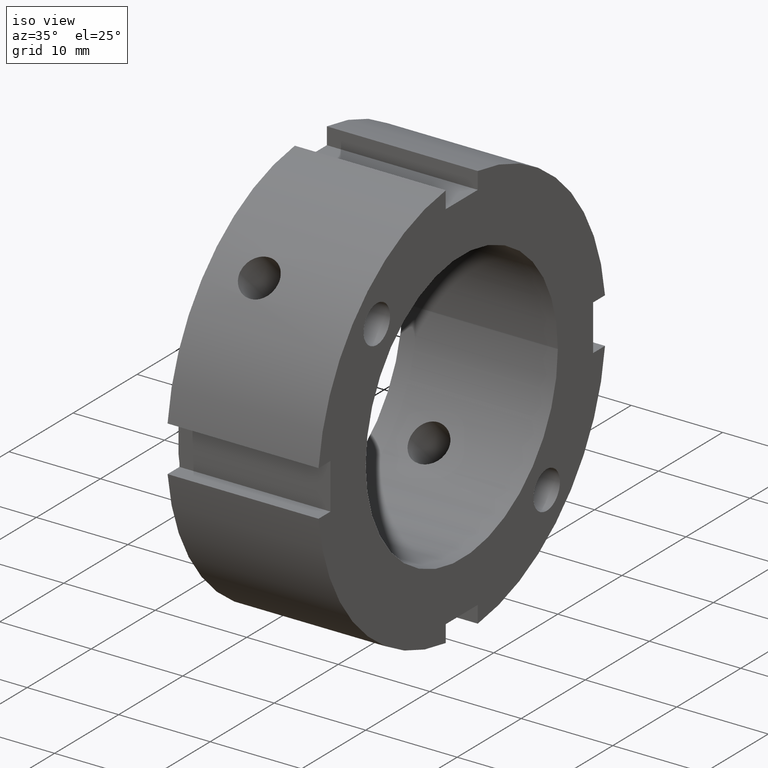
[diagram: clean part render]
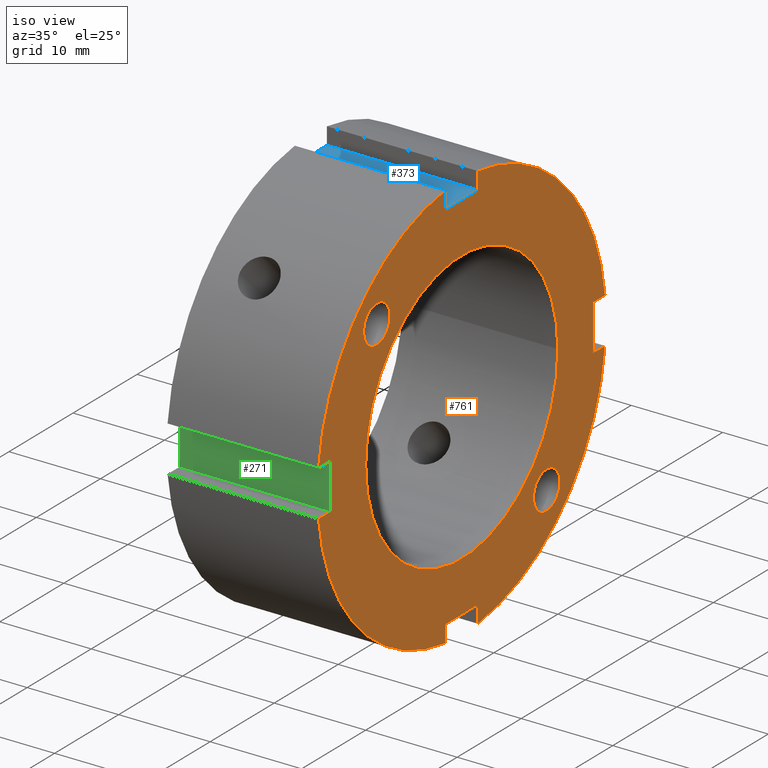
[diagram: same view with three faces highlighted in distinct colors, each labeled with its STEP entity id]
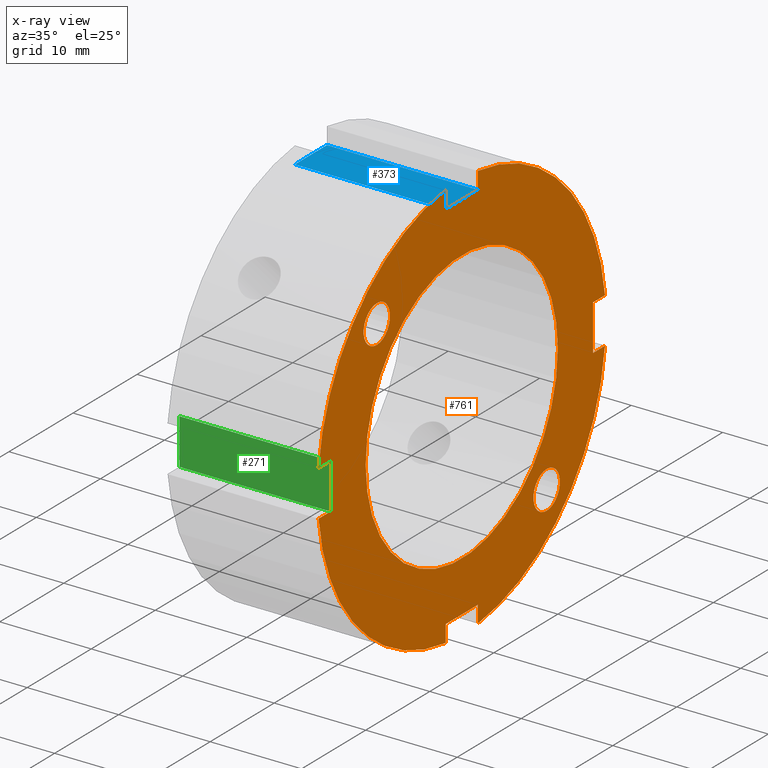
[diagram: x-ray of the same camera — body ghosted, the three highlighted faces saturated]
A machine part, iso view with three faces highlighted in distinct colors.
The next image is the same camera in x-ray (body ghosted, the three faces saturated) — at least one of them is partly hidden behind the body in this view.
Their STEP definitions:

[orange] entity #761 — the highlighted planar face has unit normal (1, 0, 0).
#73=CARTESIAN_POINT('',(16.500000000000007,2.499999999999996,-22.360679774997898));
#74=VERTEX_POINT('',#73);
#83=CARTESIAN_POINT('',(16.500000000000007,2.499999999999996,-20.500000000000000));
#84=VERTEX_POINT('',#83);
#85=CARTESIAN_POINT('',(16.500000000000007,2.499999999999997,-20.500000000000000));
#86=DIRECTION('',(0.0,0.0,-1.0));
#87=VECTOR('',#86,1.860679774997898);
#88=LINE('',#85,#87);
#89=EDGE_CURVE('',#84,#74,#88,.T.);
#115=CARTESIAN_POINT('',(16.500000000000007,-2.500000000000005,-22.360679774997898));
#116=VERTEX_POINT('',#115);
#131=CARTESIAN_POINT('',(16.500000000000007,-2.500000000000004,-20.500000000000000));
#132=VERTEX_POINT('',#131);
#139=CARTESIAN_POINT('',(16.500000000000007,-2.500000000000004,-22.360679774997898));
#140=DIRECTION('',(0.0,0.0,1.0));
#141=VECTOR('',#140,1.860679774997898);
#142=LINE('',#139,#141);
#143=EDGE_CURVE('',#116,#132,#142,.T.);
#160=CARTESIAN_POINT('',(16.500000000000007,-2.500000000000004,-20.499999999999996));
#161=DIRECTION('',(0.0,1.0,0.0));
#162=VECTOR('',#161,5.0);
#163=LINE('',#160,#162);
#164=EDGE_CURVE('',#132,#84,#163,.T.);
#175=CARTESIAN_POINT('',(16.500000000000007,-22.360679774997898,-2.499999999999997));
#176=VERTEX_POINT('',#175);
#185=CARTESIAN_POINT('',(16.500000000000007,-20.500000000000000,-2.499999999999997));
#186=VERTEX_POINT('',#185);
#187=CARTESIAN_POINT('',(16.500000000000007,-20.500000000000000,-2.499999999999997));
#188=DIRECTION('',(0.0,-1.0,0.0));
#189=VECTOR('',#188,1.860679774997898);
#190=LINE('',#187,#189);
#191=EDGE_CURVE('',#186,#176,#190,.T.);
#217=CARTESIAN_POINT('',(16.500000000000007,-22.360679774997898,2.500000000000004));
#218=VERTEX_POINT('',#217);
#233=CARTESIAN_POINT('',(16.500000000000007,-20.500000000000000,2.500000000000003));
#234=VERTEX_POINT('',#233);
#241=CARTESIAN_POINT('',(16.500000000000007,-22.360679774997902,2.500000000000002));
#242=DIRECTION('',(0.0,1.0,0.0));
#243=VECTOR('',#242,1.860679774997905);
#244=LINE('',#241,#243);
#245=EDGE_CURVE('',#218,#234,#244,.T.);
#262=CARTESIAN_POINT('',(16.500000000000007,-20.500000000000000,2.500000000000003));
#263=DIRECTION('',(0.0,0.0,-1.0));
#264=VECTOR('',#263,5.0);
#265=LINE('',#262,#264);
#266=EDGE_CURVE('',#234,#186,#265,.T.);
#277=CARTESIAN_POINT('',(16.500000000000007,-2.499999999999999,22.360679774997898));
#278=VERTEX_POINT('',#277);
#287=CARTESIAN_POINT('',(16.500000000000007,-2.499999999999999,20.500000000000000));
#288=VERTEX_POINT('',#287);
#289=CARTESIAN_POINT('',(16.500000000000007,-2.499999999999999,20.500000000000000));
#290=DIRECTION('',(0.0,0.0,1.0));
#291=VECTOR('',#290,1.860679774997898);
#292=LINE('',#289,#291);
#293=EDGE_CURVE('',#288,#278,#292,.T.);
#319=CARTESIAN_POINT('',(16.500000000000007,2.500000000000002,22.360679774997898));
#320=VERTEX_POINT('',#319);
#335=CARTESIAN_POINT('',(16.500000000000007,2.500000000000002,20.500000000000000));
#336=VERTEX_POINT('',#335);
#343=CARTESIAN_POINT('',(16.500000000000007,2.500000000000001,22.360679774997898));
#344=DIRECTION('',(0.0,0.0,-1.0));
#345=VECTOR('',#344,1.860679774997898);
#346=LINE('',#343,#345);
#347=EDGE_CURVE('',#320,#336,#346,.T.);
#364=CARTESIAN_POINT('',(16.500000000000007,2.500000000000002,20.500000000000000));
#365=DIRECTION('',(0.0,-1.0,0.0));
#366=VECTOR('',#365,5.0);
#367=LINE('',#364,#366);
#368=EDGE_CURVE('',#336,#288,#367,.T.);
#380=CARTESIAN_POINT('',(16.500000000000007,22.360679774997898,2.500000000000000));
#381=VERTEX_POINT('',#380);
#382=CARTESIAN_POINT('',(16.500000000000004,0.0,0.0));
#383=DIRECTION('',(1.0,0.0,0.0));
#384=DIRECTION('',(0.0,1.0,0.0));
#385=AXIS2_PLACEMENT_3D('',#382,#383,#384);
#386=CIRCLE('',#385,22.500000000000004);
#387=EDGE_CURVE('',#381,#320,#386,.T.);
#413=CARTESIAN_POINT('',(16.500000000000004,0.0,0.0));
#414=DIRECTION('',(1.0,0.0,0.0));
#415=DIRECTION('',(0.0,1.0,0.0));
#416=AXIS2_PLACEMENT_3D('',#413,#414,#415);
#417=CIRCLE('',#416,22.500000000000004);
#418=EDGE_CURVE('',#278,#218,#417,.T.);
#486=CARTESIAN_POINT('',(16.500000000000004,0.0,0.0));
#487=DIRECTION('',(1.0,0.0,0.0));
#488=DIRECTION('',(0.0,1.0,0.0));
#489=AXIS2_PLACEMENT_3D('',#486,#487,#488);
#490=CIRCLE('',#489,22.500000000000004);
#491=EDGE_CURVE('',#176,#116,#490,.T.);
#519=CARTESIAN_POINT('',(16.500000000000007,22.360679774997898,-2.500000000000001));
#520=VERTEX_POINT('',#519);
#527=CARTESIAN_POINT('',(16.500000000000004,0.0,0.0));
#528=DIRECTION('',(1.0,0.0,0.0));
#529=DIRECTION('',(0.0,1.0,0.0));
#530=AXIS2_PLACEMENT_3D('',#527,#528,#529);
#531=CIRCLE('',#530,22.500000000000004);
#532=EDGE_CURVE('',#74,#520,#531,.T.);
#646=CARTESIAN_POINT('',(16.500000000000007,20.500000000000000,2.500000000000000));
#647=VERTEX_POINT('',#646);
#648=CARTESIAN_POINT('',(16.500000000000007,20.500000000000000,2.500000000000000));
#649=DIRECTION('',(0.0,1.0,0.0));
#650=VECTOR('',#649,1.860679774997898);
#651=LINE('',#648,#650);
#652=EDGE_CURVE('',#647,#381,#651,.T.);
#671=CARTESIAN_POINT('',(16.500000000000007,20.500000000000000,-2.500000000000000));
#672=VERTEX_POINT('',#671);
#679=CARTESIAN_POINT('',(16.500000000000007,22.360679774997898,-2.500000000000000));
#680=DIRECTION('',(0.0,-1.0,0.0));
#681=VECTOR('',#680,1.860679774997902);
#682=LINE('',#679,#681);
#683=EDGE_CURVE('',#520,#672,#682,.T.);
#695=CARTESIAN_POINT('',(16.500000000000007,20.500000000000000,-2.500000000000000));
#696=DIRECTION('',(0.0,0.0,1.0));
#697=VECTOR('',#696,5.0);
#698=LINE('',#695,#697);
#699=EDGE_CURVE('',#672,#647,#698,.T.);
#705=CARTESIAN_POINT('',(16.500000000000007,18.750000000000004,0.0));
#706=DIRECTION('',(1.0,0.0,0.0));
#707=DIRECTION('',(0.0,0.0,-1.0));
#708=AXIS2_PLACEMENT_3D('',#705,#706,#707);
#709=PLANE('',#708);
#710=ORIENTED_EDGE('',*,*,#89,.T.);
#711=ORIENTED_EDGE('',*,*,#532,.T.);
#712=ORIENTED_EDGE('',*,*,#683,.T.);
#713=ORIENTED_EDGE('',*,*,#699,.T.);
#714=ORIENTED_EDGE('',*,*,#652,.T.);
#715=ORIENTED_EDGE('',*,*,#387,.T.);
#716=ORIENTED_EDGE('',*,*,#347,.T.);
#717=ORIENTED_EDGE('',*,*,#368,.T.);
#718=ORIENTED_EDGE('',*,*,#293,.T.);
#719=ORIENTED_EDGE('',*,*,#418,.T.);
#720=ORIENTED_EDGE('',*,*,#245,.T.);
#721=ORIENTED_EDGE('',*,*,#266,.T.);
#722=ORIENTED_EDGE('',*,*,#191,.T.);
#723=ORIENTED_EDGE('',*,*,#491,.T.);
#724=ORIENTED_EDGE('',*,*,#143,.T.);
#725=ORIENTED_EDGE('',*,*,#164,.T.);
#726=EDGE_LOOP('',(#710,#711,#712,#713,#714,#715,#716,#717,#718,#719,#720,#721,#722,#723,#724,#725));
#727=FACE_OUTER_BOUND('',#726,.T.);
#728=CARTESIAN_POINT('',(16.500000000000007,15.000000000000002,0.0));
#729=VERTEX_POINT('',#728);
#730=CARTESIAN_POINT('',(16.500000000000007,0.0,0.0));
#731=DIRECTION('',(1.0,0.0,0.0));
#732=DIRECTION('',(0.0,1.0,0.0));
#733=AXIS2_PLACEMENT_3D('',#730,#731,#732);
#734=CIRCLE('',#733,15.000000000000002);
#735=EDGE_CURVE('',#729,#729,#734,.T.);
#736=ORIENTED_EDGE('',*,*,#735,.F.);
#737=EDGE_LOOP('',(#736));
#738=FACE_BOUND('',#737,.T.);
#739=CARTESIAN_POINT('',(16.500000000000007,13.258252147247774,-15.325252147247767));
#740=VERTEX_POINT('',#739);
#741=CARTESIAN_POINT('',(16.500000000000007,13.258252147247774,-13.258252147247767));
#742=DIRECTION('',(-1.0,0.0,0.0));
#743=DIRECTION('',(0.0,0.0,-1.0));
#744=AXIS2_PLACEMENT_3D('',#741,#742,#743);
#745=CIRCLE('',#744,2.067000000000000);
#746=EDGE_CURVE('',#740,#740,#745,.T.);
#747=ORIENTED_EDGE('',*,*,#746,.T.);
#748=EDGE_LOOP('',(#747));
#749=FACE_BOUND('',#748,.T.);
#750=CARTESIAN_POINT('',(16.500000000000007,-13.258252147247770,15.325252147247770));
#751=VERTEX_POINT('',#750);
#752=CARTESIAN_POINT('',(16.500000000000007,-13.258252147247770,13.258252147247768));
#753=DIRECTION('',(-1.0,0.0,0.0));
#754=DIRECTION('',(0.0,0.0,1.0));
#755=AXIS2_PLACEMENT_3D('',#752,#753,#754);
#756=CIRCLE('',#755,2.067000000000000);
#757=EDGE_CURVE('',#751,#751,#756,.T.);
#758=ORIENTED_EDGE('',*,*,#757,.T.);
#759=EDGE_LOOP('',(#758));
#760=FACE_BOUND('',#759,.T.);
#761=ADVANCED_FACE('',(#727,#738,#749,#760),#709,.T.);

[blue] entity #373 — the highlighted planar face has unit normal (0, 0, -1).
#287=CARTESIAN_POINT('',(16.500000000000007,-2.499999999999999,20.500000000000000));
#288=VERTEX_POINT('',#287);
#295=CARTESIAN_POINT('',(0.0,-2.499999999999999,20.500000000000000));
#296=VERTEX_POINT('',#295);
#297=CARTESIAN_POINT('',(16.500000000000007,-2.499999999999999,20.500000000000000));
#298=DIRECTION('',(-1.0,0.0,0.0));
#299=VECTOR('',#298,16.500000000000007);
#300=LINE('',#297,#299);
#301=EDGE_CURVE('',#288,#296,#300,.T.);
#327=CARTESIAN_POINT('',(0.0,2.500000000000002,20.500000000000000));
#328=VERTEX_POINT('',#327);
#335=CARTESIAN_POINT('',(16.500000000000007,2.500000000000002,20.500000000000000));
#336=VERTEX_POINT('',#335);
#337=CARTESIAN_POINT('',(16.500000000000007,2.500000000000002,20.500000000000000));
#338=DIRECTION('',(-1.0,0.0,0.0));
#339=VECTOR('',#338,16.500000000000007);
#340=LINE('',#337,#339);
#341=EDGE_CURVE('',#336,#328,#340,.T.);
#352=CARTESIAN_POINT('',(16.500000000000007,-2.499999999999999,20.500000000000000));
#353=DIRECTION('',(0.0,0.0,-1.0));
#354=DIRECTION('',(0.0,1.0,0.0));
#355=AXIS2_PLACEMENT_3D('',#352,#353,#354);
#356=PLANE('',#355);
#357=CARTESIAN_POINT('',(0.0,-2.499999999999998,20.500000000000000));
#358=DIRECTION('',(0.0,1.0,0.0));
#359=VECTOR('',#358,5.0);
#360=LINE('',#357,#359);
#361=EDGE_CURVE('',#296,#328,#360,.T.);
#362=ORIENTED_EDGE('',*,*,#361,.F.);
#363=ORIENTED_EDGE('',*,*,#301,.F.);
#364=CARTESIAN_POINT('',(16.500000000000007,2.500000000000002,20.500000000000000));
#365=DIRECTION('',(0.0,-1.0,0.0));
#366=VECTOR('',#365,5.0);
#367=LINE('',#364,#366);
#368=EDGE_CURVE('',#336,#288,#367,.T.);
#369=ORIENTED_EDGE('',*,*,#368,.F.);
#370=ORIENTED_EDGE('',*,*,#341,.T.);
#371=EDGE_LOOP('',(#362,#363,#369,#370));
#372=FACE_OUTER_BOUND('',#371,.T.);
#373=ADVANCED_FACE('',(#372),#356,.F.);

[green] entity #271 — the highlighted planar face has unit normal (0, 1, 0).
#185=CARTESIAN_POINT('',(16.500000000000007,-20.500000000000000,-2.499999999999997));
#186=VERTEX_POINT('',#185);
#193=CARTESIAN_POINT('',(0.0,-20.500000000000000,-2.499999999999997));
#194=VERTEX_POINT('',#193);
#195=CARTESIAN_POINT('',(16.500000000000007,-20.500000000000000,-2.499999999999997));
#196=DIRECTION('',(-1.0,0.0,0.0));
#197=VECTOR('',#196,16.500000000000007);
#198=LINE('',#195,#197);
#199=EDGE_CURVE('',#186,#194,#198,.T.);
#225=CARTESIAN_POINT('',(0.0,-20.500000000000000,2.500000000000003));
#226=VERTEX_POINT('',#225);
#233=CARTESIAN_POINT('',(16.500000000000007,-20.500000000000000,2.500000000000003));
#234=VERTEX_POINT('',#233);
#235=CARTESIAN_POINT('',(16.500000000000007,-20.500000000000000,2.500000000000003));
#236=DIRECTION('',(-1.0,0.0,0.0));
#237=VECTOR('',#236,16.500000000000007);
#238=LINE('',#235,#237);
#239=EDGE_CURVE('',#234,#226,#238,.T.);
#250=CARTESIAN_POINT('',(16.500000000000007,-20.500000000000000,-2.499999999999997));
#251=DIRECTION('',(0.0,1.0,0.0));
#252=DIRECTION('',(0.0,0.0,1.0));
#253=AXIS2_PLACEMENT_3D('',#250,#251,#252);
#254=PLANE('',#253);
#255=CARTESIAN_POINT('',(0.0,-20.500000000000000,-2.499999999999997));
#256=DIRECTION('',(0.0,0.0,1.0));
#257=VECTOR('',#256,5.0);
#258=LINE('',#255,#257);
#259=EDGE_CURVE('',#194,#226,#258,.T.);
#260=ORIENTED_EDGE('',*,*,#259,.F.);
#261=ORIENTED_EDGE('',*,*,#199,.F.);
#262=CARTESIAN_POINT('',(16.500000000000007,-20.500000000000000,2.500000000000003));
#263=DIRECTION('',(0.0,0.0,-1.0));
#264=VECTOR('',#263,5.0);
#265=LINE('',#262,#264);
#266=EDGE_CURVE('',#234,#186,#265,.T.);
#267=ORIENTED_EDGE('',*,*,#266,.F.);
#268=ORIENTED_EDGE('',*,*,#239,.T.);
#269=EDGE_LOOP('',(#260,#261,#267,#268));
#270=FACE_OUTER_BOUND('',#269,.T.);
#271=ADVANCED_FACE('',(#270),#254,.F.);